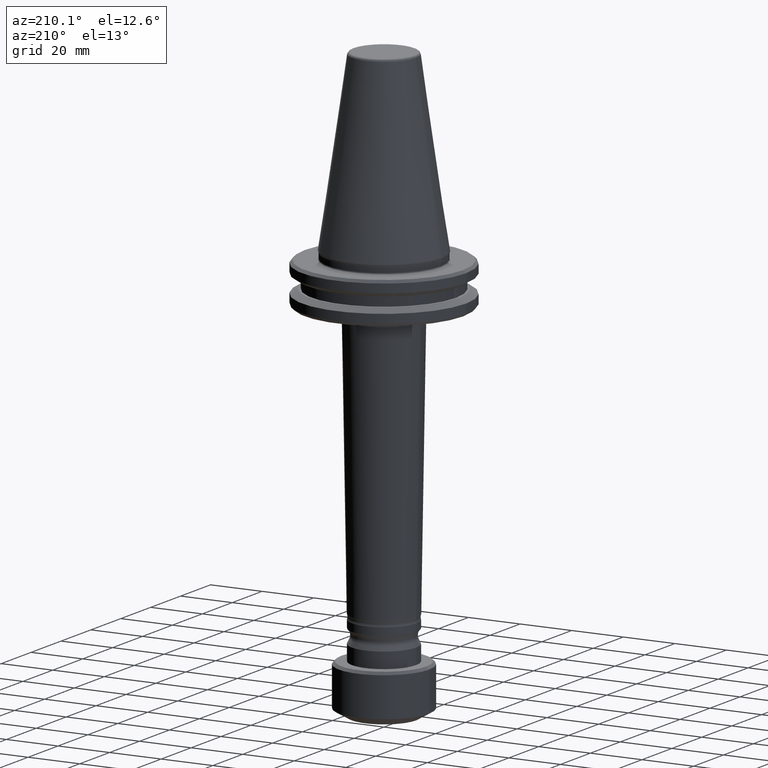
[diagram: clean part render]
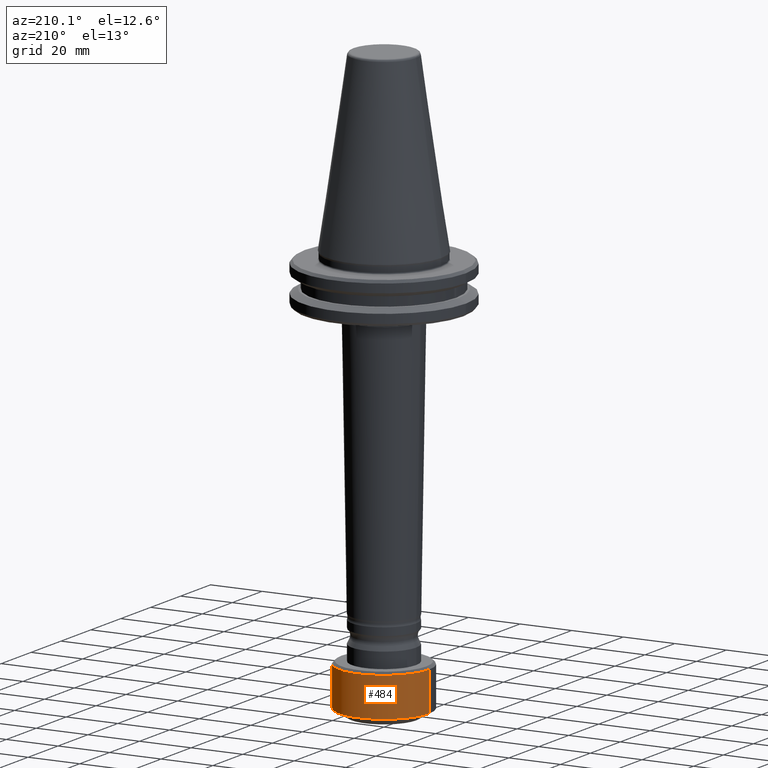
[diagram: same view with one face highlighted and labeled with its STEP entity id]
A machine part, auxiliary view. The second image highlights one B-rep face of the part: STEP entity #484.
In plain terms, the highlighted cylindrical surface (partial cylindrical patch) has radius 17.5 mm, axis along (-0, -0, 1).
Its self-contained STEP definition (entity closure, byte-faithful):
#71 = CYLINDRICAL_SURFACE ( 'NONE', #368, 17.49999999999998900 ) ;
#76 = DIRECTION ( 'NONE',  ( 1.000000000000000000, 0.0000000000000000000, 0.0000000000000000000 ) ) ;
#78 = CARTESIAN_POINT ( 'NONE',  ( -17.49999999999998900, 2.143131898507866700E-015, -8.613248653999983500 ) ) ;
#90 = CARTESIAN_POINT ( 'NONE',  ( 0.0000000000000000000, 0.0000000000000000000, 6.500000000000005300 ) ) ;
#132 = CARTESIAN_POINT ( 'NONE',  ( 17.49999999999998900, 0.0000000000000000000, -8.613248653999983500 ) ) ;
#149 = DIRECTION ( 'NONE',  ( -0.0000000000000000000, -0.0000000000000000000, 1.000000000000000000 ) ) ;
#284 = CARTESIAN_POINT ( 'NONE',  ( -17.49999999999998900, 2.143131898507866300E-015, 256.3737897661631600 ) ) ;
#290 = VERTEX_POINT ( 'NONE', #132 ) ;
#333 = AXIS2_PLACEMENT_3D ( 'NONE', #1499, #840, #76 ) ;
#358 = EDGE_CURVE ( 'NONE', #629, #1293, #631, .T. ) ;
#368 = AXIS2_PLACEMENT_3D ( 'NONE', #1131, #969, #933 ) ;
#416 = EDGE_CURVE ( 'NONE', #501, #1293, #428, .T. ) ;
#428 = CIRCLE ( 'NONE', #1127, 17.49999999999998900 ) ;
#443 = DIRECTION ( 'NONE',  ( -0.0000000000000000000, -0.0000000000000000000, 1.000000000000000000 ) ) ;
#484 = ADVANCED_FACE ( 'NONE', ( #934 ), #71, .T. ) ;
#501 = VERTEX_POINT ( 'NONE', #1264 ) ;
#506 = CARTESIAN_POINT ( 'NONE',  ( -17.49999999999998900, 2.143131898507866300E-015, 6.500000000000005300 ) ) ;
#618 = EDGE_LOOP ( 'NONE', ( #702, #807, #1347, #1269 ) ) ;
#629 = VERTEX_POINT ( 'NONE', #78 ) ;
#631 = LINE ( 'NONE', #284, #1332 ) ;
#667 = CARTESIAN_POINT ( 'NONE',  ( 17.49999999999998900, 0.0000000000000000000, 256.3737897661631600 ) ) ;
#702 = ORIENTED_EDGE ( 'NONE', *, *, #1535, .T. ) ;
#737 = CIRCLE ( 'NONE', #333, 17.49999999999998900 ) ;
#776 = VECTOR ( 'NONE', #149, 1000.000000000000000 ) ;
#780 = LINE ( 'NONE', #667, #776 ) ;
#807 = ORIENTED_EDGE ( 'NONE', *, *, #358, .T. ) ;
#840 = DIRECTION ( 'NONE',  ( -0.0000000000000000000, -0.0000000000000000000, 1.000000000000000000 ) ) ;
#933 = DIRECTION ( 'NONE',  ( 1.000000000000000000, 0.0000000000000000000, 0.0000000000000000000 ) ) ;
#934 = FACE_OUTER_BOUND ( 'NONE', #618, .T. ) ;
#969 = DIRECTION ( 'NONE',  ( -0.0000000000000000000, -0.0000000000000000000, 1.000000000000000000 ) ) ;
#1127 = AXIS2_PLACEMENT_3D ( 'NONE', #90, #443, #1281 ) ;
#1131 = CARTESIAN_POINT ( 'NONE',  ( 0.0000000000000000000, 0.0000000000000000000, 256.3737897661631600 ) ) ;
#1264 = CARTESIAN_POINT ( 'NONE',  ( 17.49999999999998900, 0.0000000000000000000, 6.500000000000005300 ) ) ;
#1269 = ORIENTED_EDGE ( 'NONE', *, *, #1398, .F. ) ;
#1281 = DIRECTION ( 'NONE',  ( 1.000000000000000000, 0.0000000000000000000, 0.0000000000000000000 ) ) ;
#1293 = VERTEX_POINT ( 'NONE', #506 ) ;
#1332 = VECTOR ( 'NONE', #1464, 1000.000000000000000 ) ;
#1347 = ORIENTED_EDGE ( 'NONE', *, *, #416, .F. ) ;
#1398 = EDGE_CURVE ( 'NONE', #290, #501, #780, .T. ) ;
#1464 = DIRECTION ( 'NONE',  ( -0.0000000000000000000, -0.0000000000000000000, 1.000000000000000000 ) ) ;
#1499 = CARTESIAN_POINT ( 'NONE',  ( 0.0000000000000000000, 0.0000000000000000000, -8.613248653999983500 ) ) ;
#1535 = EDGE_CURVE ( 'NONE', #290, #629, #737, .T. ) ;